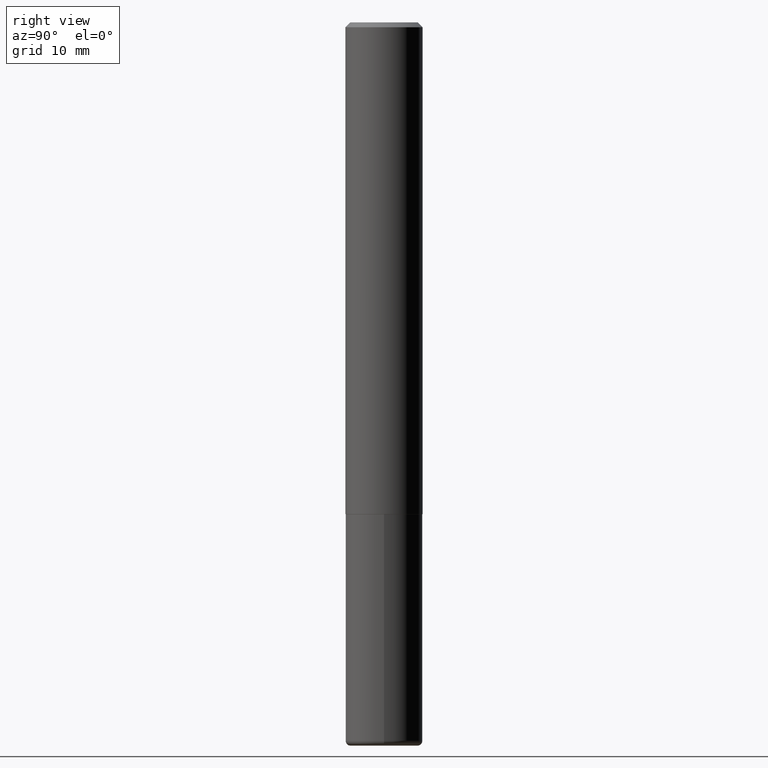
[diagram: clean part render]
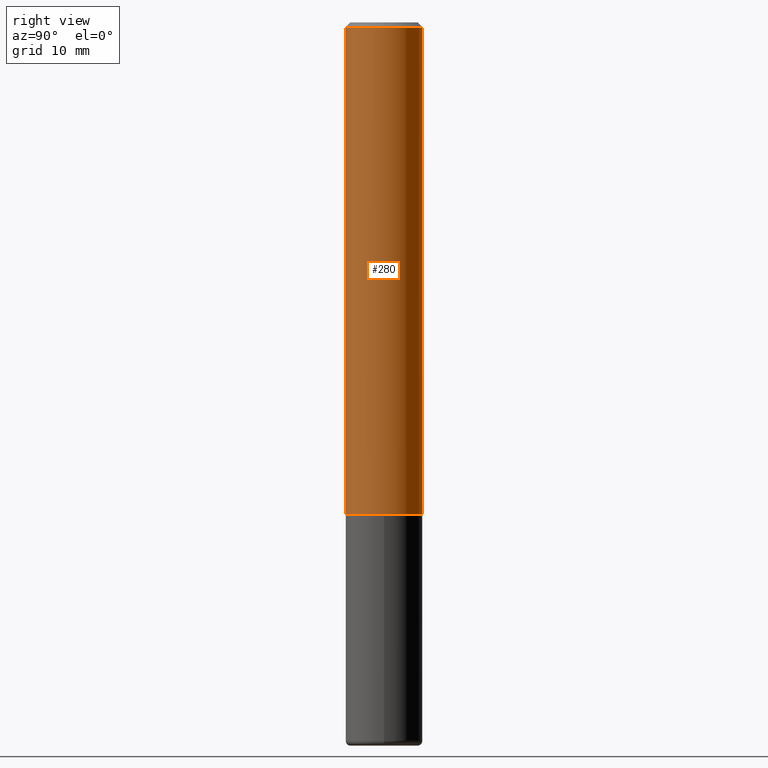
[diagram: same view with one face highlighted and labeled with its STEP entity id]
A machine part, right view. The second image highlights one B-rep face of the part: STEP entity #280.
In plain terms, the highlighted cylindrical surface (partial cylindrical patch) has radius 4.0005 mm, axis along (-0, 0, 1).
Its self-contained STEP definition (entity closure, byte-faithful):
#2 = DIRECTION ( 'NONE',  ( -2.444729828315544280E-29, 3.492539597212409932E-15, 1.000000000000000000 ) ) ;
#18 = EDGE_LOOP ( 'NONE', ( #417, #235, #73, #283 ) ) ;
#48 = CYLINDRICAL_SURFACE ( 'NONE', #53, 0.1575000000000001399 ) ;
#53 = AXIS2_PLACEMENT_3D ( 'NONE', #400, #261, #230 ) ;
#59 = CARTESIAN_POINT ( 'NONE',  ( -1.099816621735587677E-15, -0.1575000000000001399, 5.500749865609550376E-16 ) ) ;
#73 = ORIENTED_EDGE ( 'NONE', *, *, #317, .F. ) ;
#108 = CIRCLE ( 'NONE', #367, 0.1575000000000002232 ) ;
#116 = CIRCLE ( 'NONE', #276, 0.1575000000000000289 ) ;
#130 = VERTEX_POINT ( 'NONE', #404 ) ;
#151 = CARTESIAN_POINT ( 'NONE',  ( -1.080528434649015779E-15, -0.1575000000000000844, -0.01999999999999948347 ) ) ;
#152 = DIRECTION ( 'NONE',  ( -2.444729828315544280E-29, 3.492539597212409932E-15, 1.000000000000000000 ) ) ;
#153 = VERTEX_POINT ( 'NONE', #194 ) ;
#178 = EDGE_CURVE ( 'NONE', #130, #411, #201, .T. ) ;
#194 = CARTESIAN_POINT ( 'NONE',  ( -1.099816621735539360E-15, -0.1575000000000072453, -2.006899999999999018 ) ) ;
#200 = EDGE_CURVE ( 'NONE', #153, #130, #108, .T. ) ;
#201 = LINE ( 'NONE', #414, #291 ) ;
#216 = VECTOR ( 'NONE', #370, 39.37007874015748143 ) ;
#230 = DIRECTION ( 'NONE',  ( -6.982962677686265133E-15, -1.000000000000000000, 3.492539597212409932E-15 ) ) ;
#234 = LINE ( 'NONE', #59, #216 ) ;
#235 = ORIENTED_EDGE ( 'NONE', *, *, #178, .T. ) ;
#242 = VERTEX_POINT ( 'NONE', #151 ) ;
#261 = DIRECTION ( 'NONE',  ( -2.444729828315544280E-29, 3.492539597212409932E-15, 1.000000000000000000 ) ) ;
#269 = CARTESIAN_POINT ( 'NONE',  ( 1.099816621735587480E-15, 0.1574999999999999456, -0.02000000000000058328 ) ) ;
#274 = DIRECTION ( 'NONE',  ( -2.444729828315544280E-29, 3.492539597212410327E-15, 1.000000000000000000 ) ) ;
#276 = AXIS2_PLACEMENT_3D ( 'NONE', #340, #152, #395 ) ;
#280 = ADVANCED_FACE ( 'NONE', ( #407 ), #48, .T. ) ;
#283 = ORIENTED_EDGE ( 'NONE', *, *, #304, .F. ) ;
#291 = VECTOR ( 'NONE', #274, 39.37007874015748143 ) ;
#304 = EDGE_CURVE ( 'NONE', #153, #242, #234, .T. ) ;
#316 = DIRECTION ( 'NONE',  ( -6.982962677686265922E-15, -1.000000000000000000, 3.469013325287948560E-15 ) ) ;
#317 = EDGE_CURVE ( 'NONE', #242, #411, #116, .T. ) ;
#333 = CARTESIAN_POINT ( 'NONE',  ( 4.906328292446464760E-29, -7.009177717645583542E-15, -2.006899999999999462 ) ) ;
#340 = CARTESIAN_POINT ( 'NONE',  ( 4.889459656631096617E-31, -6.985079194424830218E-17, -0.02000000000000003511 ) ) ;
#367 = AXIS2_PLACEMENT_3D ( 'NONE', #333, #2, #316 ) ;
#370 = DIRECTION ( 'NONE',  ( -2.444729828315544280E-29, 3.492539597212410327E-15, 1.000000000000000000 ) ) ;
#395 = DIRECTION ( 'NONE',  ( -6.982962677686264344E-15, -1.000000000000000000, 3.496114991891764787E-15 ) ) ;
#400 = CARTESIAN_POINT ( 'NONE',  ( 0.000000000000000000, 0.000000000000000000, 0.000000000000000000 ) ) ;
#404 = CARTESIAN_POINT ( 'NONE',  ( 1.119104808822183439E-15, 0.1574999999999932287, -2.006899999999999906 ) ) ;
#407 = FACE_OUTER_BOUND ( 'NONE', #18, .T. ) ;
#411 = VERTEX_POINT ( 'NONE', #269 ) ;
#414 = CARTESIAN_POINT ( 'NONE',  ( 1.119104808822158392E-15, 0.1575000000000001399, -5.500749865609550376E-16 ) ) ;
#417 = ORIENTED_EDGE ( 'NONE', *, *, #200, .T. ) ;